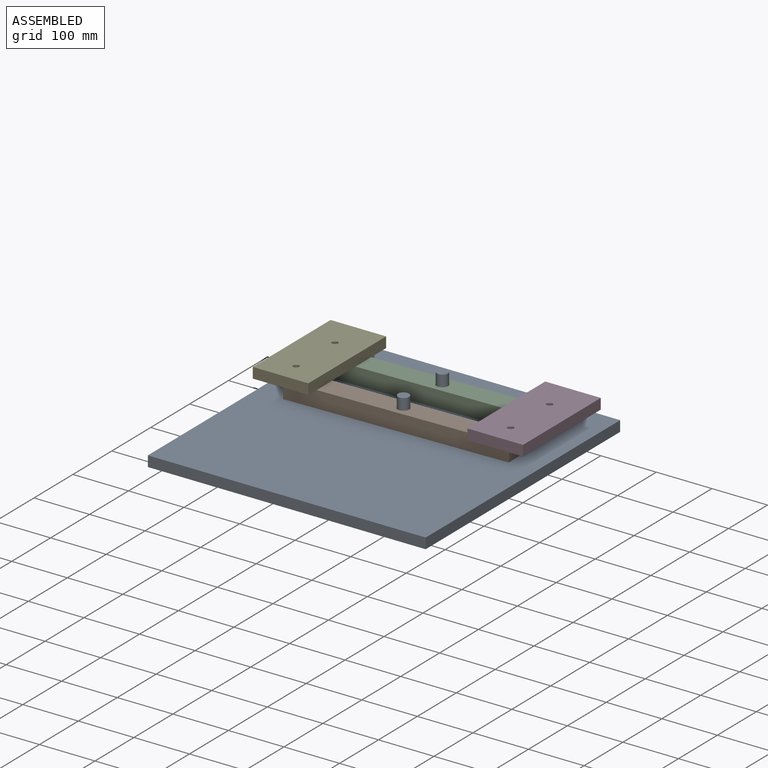
[diagram: assembled view]
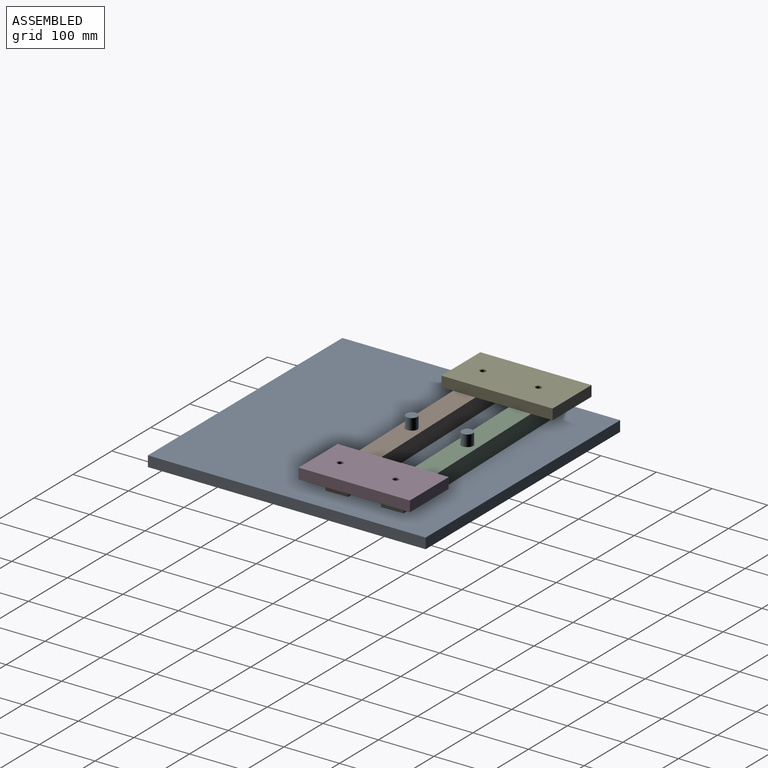
[diagram: assembled view, second angle]
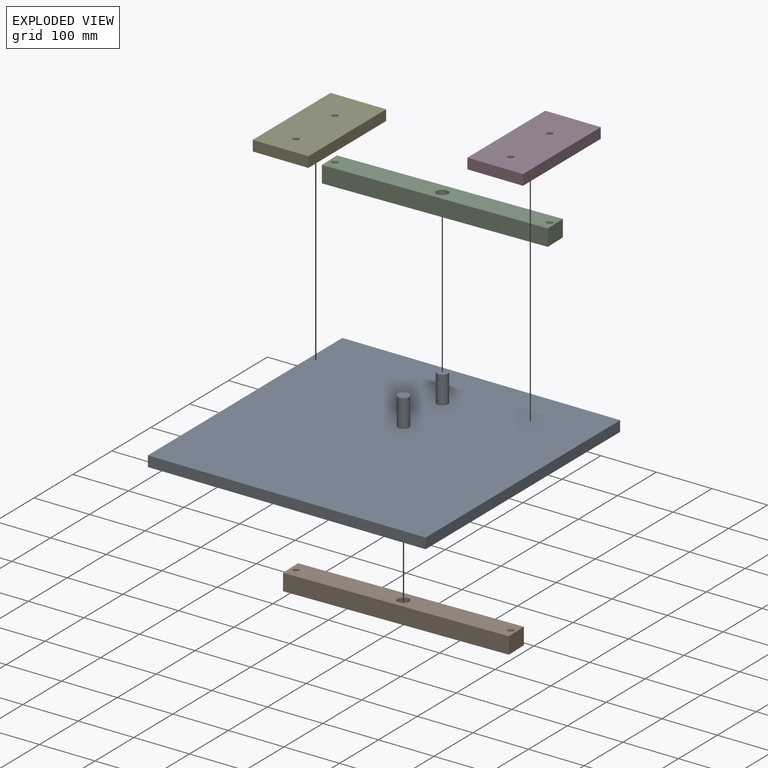
[diagram: exploded view]
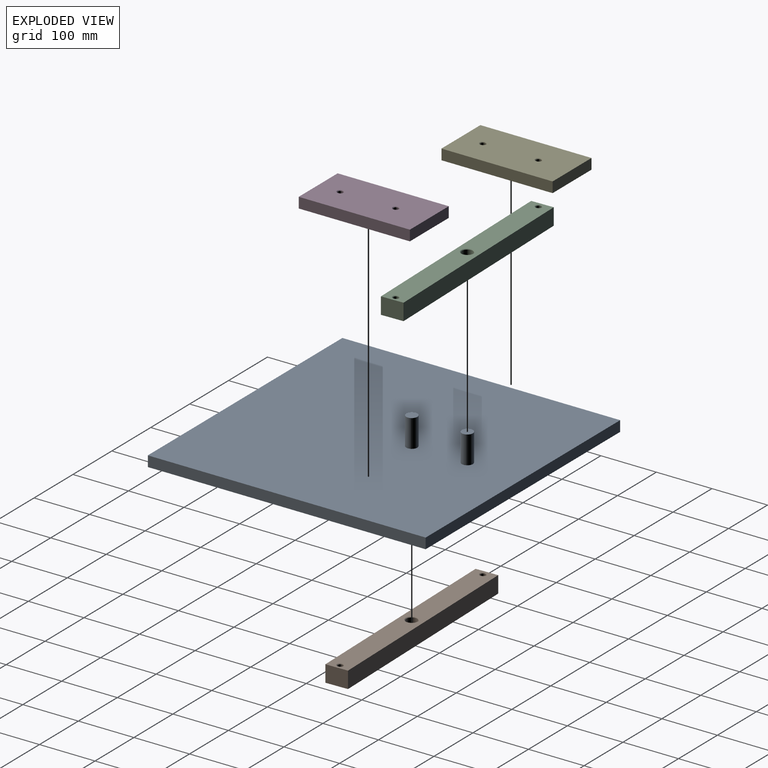
[diagram: exploded view, second angle]
ASSEMBLY  parts=5 mates=8
PART A: 10 faces, bbox 500x500x69 mm
  f0: plane 500x19mm, normal (-1,0,0), area 9500mm2, adj f1,f3,f4,f5
  f1: plane 500x19mm, normal (0,-1,0), area 9500mm2, adj f0,f2,f4,f5
  f2: plane 500x19mm, normal (1,0,0), area 9500mm2, adj f1,f3,f4,f5
  f3: plane 500x19mm, normal (0,1,0), area 9500mm2, adj f0,f2,f4,f5
  f4: plane 500x500mm, normal (0,0,-1), area 250000mm2, adj f0,f1,f2,f3
  f5: plane 500x500mm, normal (0,0,1), area 249371.7mm2, adj f0,f1,f2,f3,f6,f8
  f6: cylinder r=10mm len=50mm, axis (0,0,-1), area 3141.6mm2, adj f5,f7
  f7: plane 20x20mm, normal (0,0,1), area 314.2mm2, adj f6
  f8: cylinder r=10mm len=50mm, axis (0,0,-1), area 3141.6mm2, adj f5,f9
  f9: plane 20x20mm, normal (0,0,1), area 314.2mm2, adj f8
PART B: 15 faces, bbox 400x40x30 mm
  f0: plane 400x30mm, normal (0,-1,0), area 12000mm2, adj f1,f3,f4,f5
  f1: plane 40x30mm, normal (1,0,0), area 1200mm2, adj f0,f2,f4,f5
  f2: plane 400x30mm, normal (0,1,0), area 12000mm2, adj f1,f3,f4,f5
  f3: plane 40x30mm, normal (-1,0,0), area 1200mm2, adj f0,f2,f4,f5
  f4: plane 400x40mm, normal (0,0,1), area 15393.7mm2, adj f0,f1,f2,f3,f10,f13,f14
  f5: plane 400x40mm, normal (0,0,-1), area 15393.7mm2, adj f0,f1,f2,f3,f9,f11,f12
  f6: cylinder r=5mm len=28mm, axis (0,0,1), area 879.6mm2, adj f12,f14
  f7: cylinder r=5mm len=28mm, axis (0,0,1), area 879.6mm2, adj f11,f13
  f8: cylinder r=10mm len=28mm, axis (0,0,1), area 1759.3mm2, adj f9,f10
  f9: cone r=10mm half-angle=45deg, axis (0,0,-1), area 93.3mm2, adj f5,f8
  f10: cone r=10mm half-angle=45deg, axis (0,0,1), area 93.3mm2, adj f4,f8
  f11: cone r=5mm half-angle=45deg, axis (0,0,-1), area 48.9mm2, adj f5,f7
  f12: cone r=5mm half-angle=45deg, axis (0,0,-1), area 48.9mm2, adj f5,f6
  f13: cone r=5mm half-angle=45deg, axis (0,0,1), area 48.9mm2, adj f4,f7
  f14: cone r=5mm half-angle=45deg, axis (0,0,1), area 48.9mm2, adj f4,f6
PART C: same geometry as B
PART D: 12 faces, bbox 100x200x19 mm
  f0: plane 200x19mm, normal (-1,0,0), area 3800mm2, adj f1,f3,f4,f5
  f1: plane 100x19mm, normal (0,-1,0), area 1900mm2, adj f0,f2,f4,f5
  f2: plane 200x19mm, normal (1,0,0), area 3800mm2, adj f1,f3,f4,f5
  f3: plane 100x19mm, normal (0,1,0), area 1900mm2, adj f0,f2,f4,f5
  f4: plane 200x100mm, normal (0,0,1), area 19773.8mm2, adj f0,f1,f2,f3,f10,f11
  f5: plane 200x100mm, normal (0,0,-1), area 19773.8mm2, adj f0,f1,f2,f3,f8,f9
  f6: cylinder r=5mm len=17mm, axis (0,0,1), area 534.1mm2, adj f9,f10
  f7: cylinder r=5mm len=17mm, axis (0,0,1), area 534.1mm2, adj f8,f11
  f8: cone r=5mm half-angle=45deg, axis (0,0,-1), area 48.9mm2, adj f5,f7
  f9: cone r=5mm half-angle=45deg, axis (0,0,-1), area 48.9mm2, adj f5,f6
  f10: cone r=5mm half-angle=45deg, axis (0,0,1), area 48.9mm2, adj f4,f6
  f11: cone r=5mm half-angle=45deg, axis (0,0,1), area 48.9mm2, adj f4,f7
PART E: same geometry as D
PLACE A rot(axis=(0,0,1),180deg) t=(0,150,19)mm
PLACE B rot(axis=(0,0,1),1.4deg) t=(0,50,19)mm
PLACE C rot(axis=(0,0,-1),178.6deg) t=(0,150,19)mm
PLACE D rot(axis=(0,0,-1),180deg) t=(11.71,150.21,15)mm
PLACE E rot(axis=(1,0,0),180deg) t=(-11.71,141.06,100)mm
MATE planar A.f5 <-> B.f8  axis (0,0,1) through (0,-0.25,19)mm
MATE planar A.f5 <-> C.f8  axis (0,0,1) through (0,-0.25,19)mm
MATE revolute D.f7 <-> B.f7  axis (0,0,1) through (189.94,54.57,48)mm
MATE cylindrical C.f6 <-> D.f6  axis (0,0,1) through (189.94,154.57,49)mm
MATE cylindrical C.f8 <-> A.f6  axis (0,0,1) through (0,150,49)mm
MATE cylindrical A.f8 <-> B.f8  axis (0,0,-1) through (0,50,44)mm
MATE revolute B.f6 <-> E.f7  axis (0,0,1) through (-189.94,45.43,49)mm
MATE revolute C.f7 <-> E.f6  axis (0,0,1) through (-189.94,145.43,49)mm
